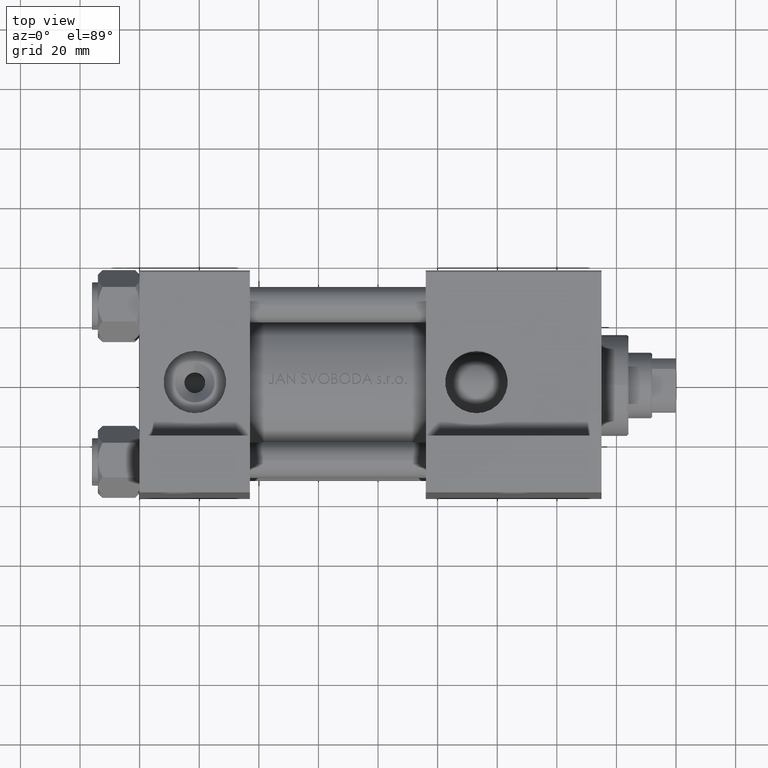
[diagram: clean part render]
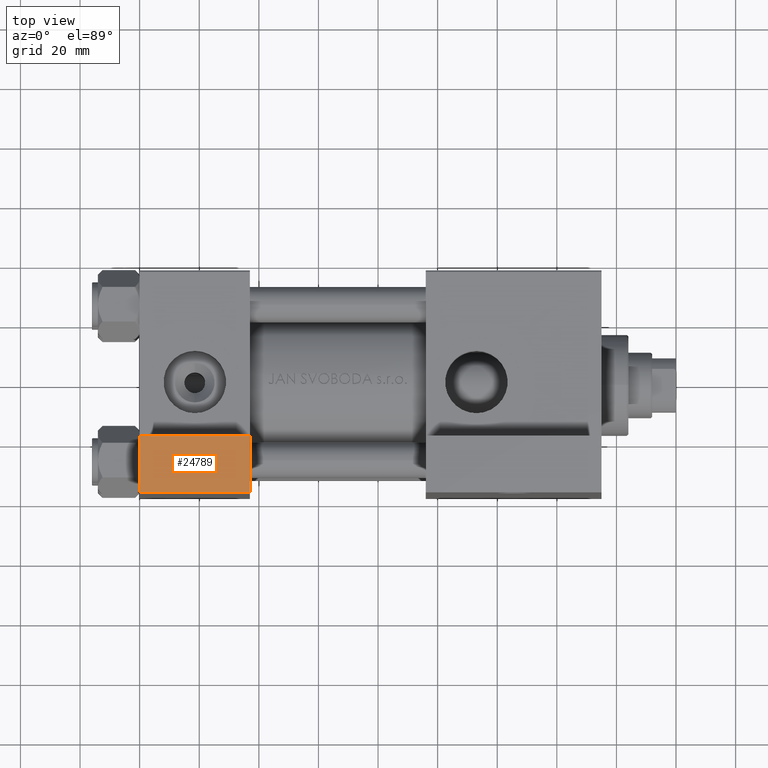
[diagram: same view with one face highlighted and labeled with its STEP entity id]
A machine part, top view. The second image highlights one B-rep face of the part: STEP entity #24789.
In plain terms, the highlighted planar face has unit normal (0, 0, 1).
Its self-contained STEP definition (entity closure, byte-faithful):
#202 = DIRECTION ( 'NONE',  ( 0.000000000000000000, -1.000000000000000000, 1.734723475976806848E-16 ) ) ;
#2744 = EDGE_CURVE ( 'NONE', #16468, #4877, #33368, .T. ) ;
#3079 = VECTOR ( 'NONE', #19697, 1000.000000000000000 ) ;
#3649 = VECTOR ( 'NONE', #28901, 1000.000000000000000 ) ;
#4877 = VERTEX_POINT ( 'NONE', #43261 ) ;
#6075 = ORIENTED_EDGE ( 'NONE', *, *, #2744, .T. ) ;
#9919 = ORIENTED_EDGE ( 'NONE', *, *, #25950, .F. ) ;
#13485 = CARTESIAN_POINT ( 'NONE',  ( 37.00000000000000000, -63.50000000000000000, -18.50000000000000355 ) ) ;
#14075 = VERTEX_POINT ( 'NONE', #13485 ) ;
#14216 = LINE ( 'NONE', #14452, #3649 ) ;
#14452 = CARTESIAN_POINT ( 'NONE',  ( 3.977209754999747208E-16, -63.50000000000000000, -18.50000000000000355 ) ) ;
#15231 = VECTOR ( 'NONE', #37575, 1000.000000000000000 ) ;
#15409 = DIRECTION ( 'NONE',  ( 0.000000000000000000, -1.734723475976806848E-16, -1.000000000000000000 ) ) ;
#16468 = VERTEX_POINT ( 'NONE', #21780 ) ;
#16787 = CARTESIAN_POINT ( 'NONE',  ( 37.00000000000000000, -63.50000000000000000, -37.49999999999999289 ) ) ;
#17383 = AXIS2_PLACEMENT_3D ( 'NONE', #22612, #202, #15409 ) ;
#18840 = EDGE_CURVE ( 'NONE', #16468, #14075, #14216, .T. ) ;
#19419 = VERTEX_POINT ( 'NONE', #16787 ) ;
#19697 = DIRECTION ( 'NONE',  ( -1.000000000000000000, -0.000000000000000000, -0.000000000000000000 ) ) ;
#21573 = EDGE_LOOP ( 'NONE', ( #24605, #6075, #9919, #49081 ) ) ;
#21780 = CARTESIAN_POINT ( 'NONE',  ( 3.977209754999747208E-16, -63.50000000000000000, -18.50000000000000355 ) ) ;
#22385 = DIRECTION ( 'NONE',  ( 0.000000000000000000, -1.734723475976806848E-16, -1.000000000000000000 ) ) ;
#22612 = CARTESIAN_POINT ( 'NONE',  ( 3.977209754999747208E-16, -63.49999999999998579, 26.72167621838007889 ) ) ;
#24605 = ORIENTED_EDGE ( 'NONE', *, *, #18840, .F. ) ;
#24789 = ADVANCED_FACE ( 'NONE', ( #45534 ), #26106, .T. ) ;
#25950 = EDGE_CURVE ( 'NONE', #19419, #4877, #42114, .T. ) ;
#26106 = PLANE ( 'NONE',  #17383 ) ;
#26367 = CARTESIAN_POINT ( 'NONE',  ( 37.00000000000000000, -63.49999999999998579, 26.72167621838007889 ) ) ;
#27181 = CARTESIAN_POINT ( 'NONE',  ( 3.977209754999747208E-16, -63.50000000000000000, -37.49999999999999289 ) ) ;
#28901 = DIRECTION ( 'NONE',  ( 1.000000000000000000, 0.000000000000000000, 0.000000000000000000 ) ) ;
#33368 = LINE ( 'NONE', #44822, #46696 ) ;
#37575 = DIRECTION ( 'NONE',  ( 0.000000000000000000, -1.734723475976806848E-16, -1.000000000000000000 ) ) ;
#42114 = LINE ( 'NONE', #27181, #3079 ) ;
#43261 = CARTESIAN_POINT ( 'NONE',  ( 3.977209754999747208E-16, -63.50000000000000000, -37.49999999999999289 ) ) ;
#43591 = EDGE_CURVE ( 'NONE', #14075, #19419, #49017, .T. ) ;
#44822 = CARTESIAN_POINT ( 'NONE',  ( 3.977209754999747208E-16, -63.49999999999998579, 26.72167621838007889 ) ) ;
#45534 = FACE_OUTER_BOUND ( 'NONE', #21573, .T. ) ;
#46696 = VECTOR ( 'NONE', #22385, 1000.000000000000000 ) ;
#49017 = LINE ( 'NONE', #26367, #15231 ) ;
#49081 = ORIENTED_EDGE ( 'NONE', *, *, #43591, .F. ) ;